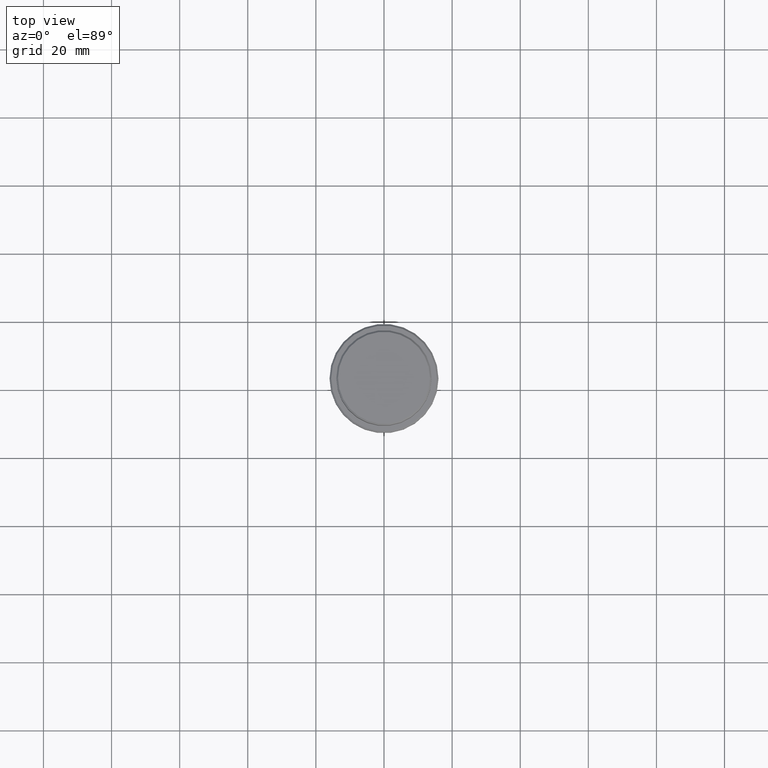
[diagram: clean part render]
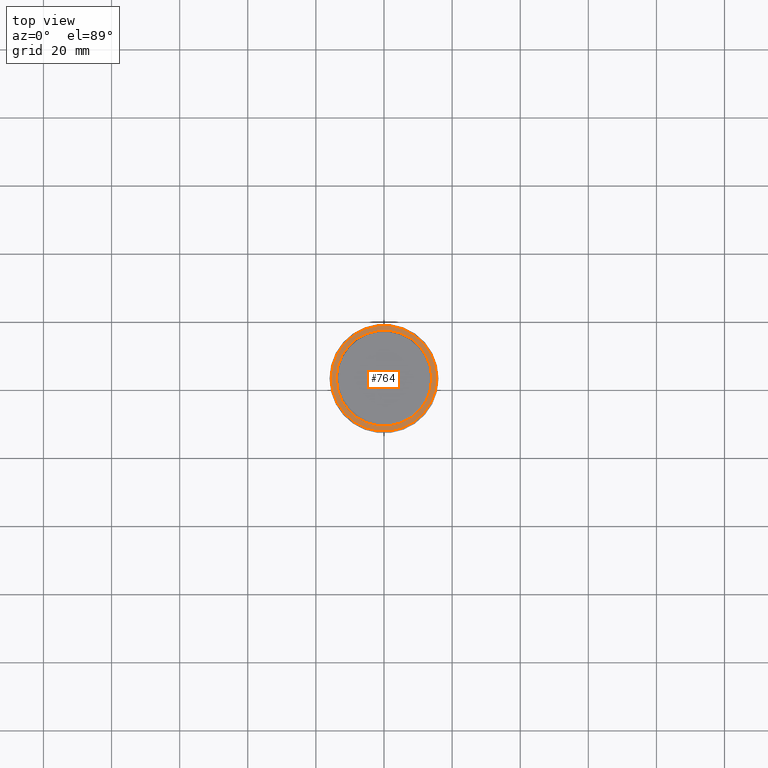
[diagram: same view with one face highlighted and labeled with its STEP entity id]
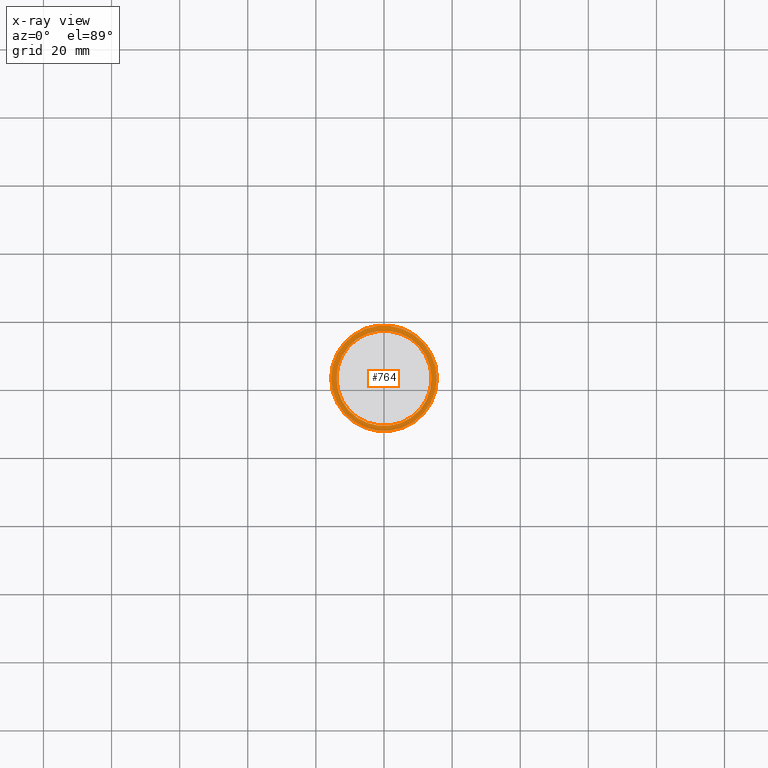
[diagram: x-ray of the same camera — body ghosted, the highlighted face saturated]
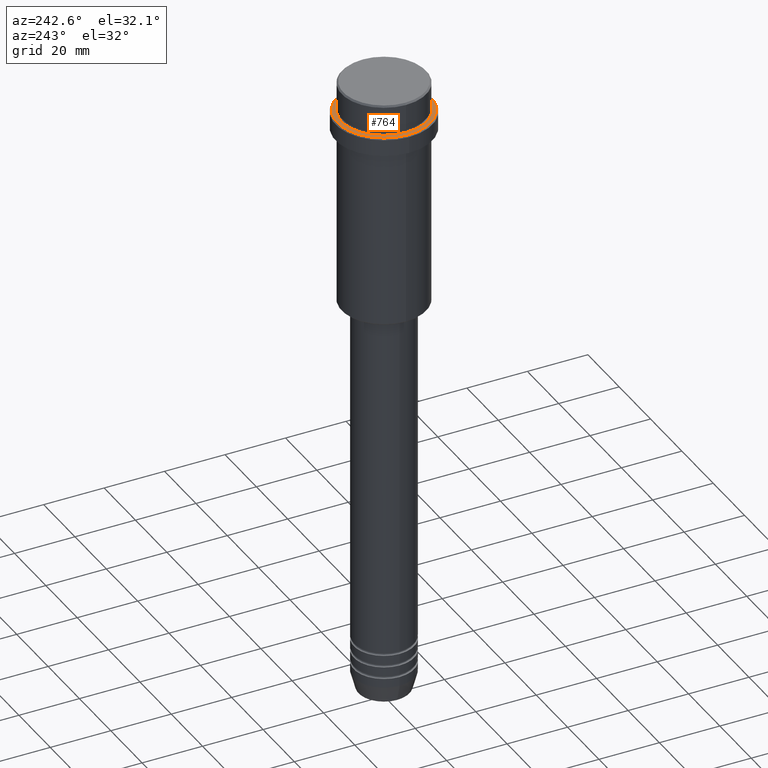
[diagram: same view with one face highlighted and labeled with its STEP entity id]
A machine part, top view. The second image highlights one B-rep face of the part: STEP entity #764.
The next image is the same camera in x-ray: the body ghosted, the highlighted face saturated — about 0% of this face is hidden behind the body in this view.
A second angle (auxiliary view) of the same face is appended — the face is thin or edge-on in the first view.
In plain terms, the highlighted planar face has unit normal (0, -0, 1).
Its self-contained STEP definition (entity closure, byte-faithful):
#95 = DIRECTION ( 'NONE',  ( 0.000000000000000000, 0.000000000000000000, -1.000000000000000000 ) ) ;
#115 = DIRECTION ( 'NONE',  ( 1.000000000000000000, 0.000000000000000000, 0.000000000000000000 ) ) ;
#168 = FACE_OUTER_BOUND ( 'NONE', #797, .T. ) ;
#192 = EDGE_CURVE ( 'NONE', #493, #268, #1156, .T. ) ;
#227 = DIRECTION ( 'NONE',  ( 1.000000000000000000, 0.000000000000000000, 0.000000000000000000 ) ) ;
#231 = AXIS2_PLACEMENT_3D ( 'NONE', #980, #1258, #1043 ) ;
#257 = ORIENTED_EDGE ( 'NONE', *, *, #262, .T. ) ;
#262 = EDGE_CURVE ( 'NONE', #268, #493, #1060, .T. ) ;
#268 = VERTEX_POINT ( 'NONE', #569 ) ;
#316 = AXIS2_PLACEMENT_3D ( 'NONE', #1315, #576, #227 ) ;
#321 = DIRECTION ( 'NONE',  ( 0.000000000000000000, 0.000000000000000000, -1.000000000000000000 ) ) ;
#476 = VERTEX_POINT ( 'NONE', #898 ) ;
#493 = VERTEX_POINT ( 'NONE', #1358 ) ;
#569 = CARTESIAN_POINT ( 'NONE',  ( 13.99999999999996803, 0.000000000000000000, -9.999999999999998224 ) ) ;
#576 = DIRECTION ( 'NONE',  ( -0.000000000000000000, -0.000000000000000000, 1.000000000000000000 ) ) ;
#672 = CARTESIAN_POINT ( 'NONE',  ( 0.000000000000000000, 0.000000000000000000, -9.999999999999998224 ) ) ;
#701 = ORIENTED_EDGE ( 'NONE', *, *, #192, .T. ) ;
#738 = CIRCLE ( 'NONE', #231, 15.49999999999995737 ) ;
#752 = DIRECTION ( 'NONE',  ( 1.000000000000000000, 0.000000000000000000, 0.000000000000000000 ) ) ;
#764 = ADVANCED_FACE ( 'NONE', ( #168, #1063 ), #935, .T. ) ;
#776 = EDGE_LOOP ( 'NONE', ( #257, #701 ) ) ;
#797 = EDGE_LOOP ( 'NONE', ( #1077, #1144 ) ) ;
#803 = VERTEX_POINT ( 'NONE', #1012 ) ;
#898 = CARTESIAN_POINT ( 'NONE',  ( -15.49999999999995737, 0.000000000000000000, -9.999999999999998224 ) ) ;
#929 = DIRECTION ( 'NONE',  ( 0.000000000000000000, -0.000000000000000000, 1.000000000000000000 ) ) ;
#935 = PLANE ( 'NONE',  #1039 ) ;
#961 = AXIS2_PLACEMENT_3D ( 'NONE', #1211, #321, #115 ) ;
#962 = EDGE_CURVE ( 'NONE', #476, #803, #738, .T. ) ;
#980 = CARTESIAN_POINT ( 'NONE',  ( 0.000000000000000000, 0.000000000000000000, -9.999999999999998224 ) ) ;
#1012 = CARTESIAN_POINT ( 'NONE',  ( 15.49999999999995737, 1.928818708657077006E-15, -9.999999999999998224 ) ) ;
#1039 = AXIS2_PLACEMENT_3D ( 'NONE', #1170, #929, #1056 ) ;
#1043 = DIRECTION ( 'NONE',  ( 1.000000000000000000, 0.000000000000000000, 0.000000000000000000 ) ) ;
#1056 = DIRECTION ( 'NONE',  ( 1.000000000000000000, 0.000000000000000000, 0.000000000000000000 ) ) ;
#1060 = CIRCLE ( 'NONE', #961, 13.99999999999996803 ) ;
#1063 = FACE_BOUND ( 'NONE', #776, .T. ) ;
#1077 = ORIENTED_EDGE ( 'NONE', *, *, #962, .T. ) ;
#1144 = ORIENTED_EDGE ( 'NONE', *, *, #1163, .T. ) ;
#1156 = CIRCLE ( 'NONE', #1301, 13.99999999999996803 ) ;
#1163 = EDGE_CURVE ( 'NONE', #803, #476, #1382, .T. ) ;
#1170 = CARTESIAN_POINT ( 'NONE',  ( 0.000000000000000000, 13.49999999999996625, -9.999999999999998224 ) ) ;
#1211 = CARTESIAN_POINT ( 'NONE',  ( 0.000000000000000000, 0.000000000000000000, -9.999999999999998224 ) ) ;
#1258 = DIRECTION ( 'NONE',  ( -0.000000000000000000, -0.000000000000000000, 1.000000000000000000 ) ) ;
#1301 = AXIS2_PLACEMENT_3D ( 'NONE', #672, #95, #752 ) ;
#1315 = CARTESIAN_POINT ( 'NONE',  ( 0.000000000000000000, 0.000000000000000000, -9.999999999999998224 ) ) ;
#1358 = CARTESIAN_POINT ( 'NONE',  ( -13.99999999999996803, 1.714505518806290694E-15, -9.999999999999998224 ) ) ;
#1382 = CIRCLE ( 'NONE', #316, 15.49999999999995737 ) ;